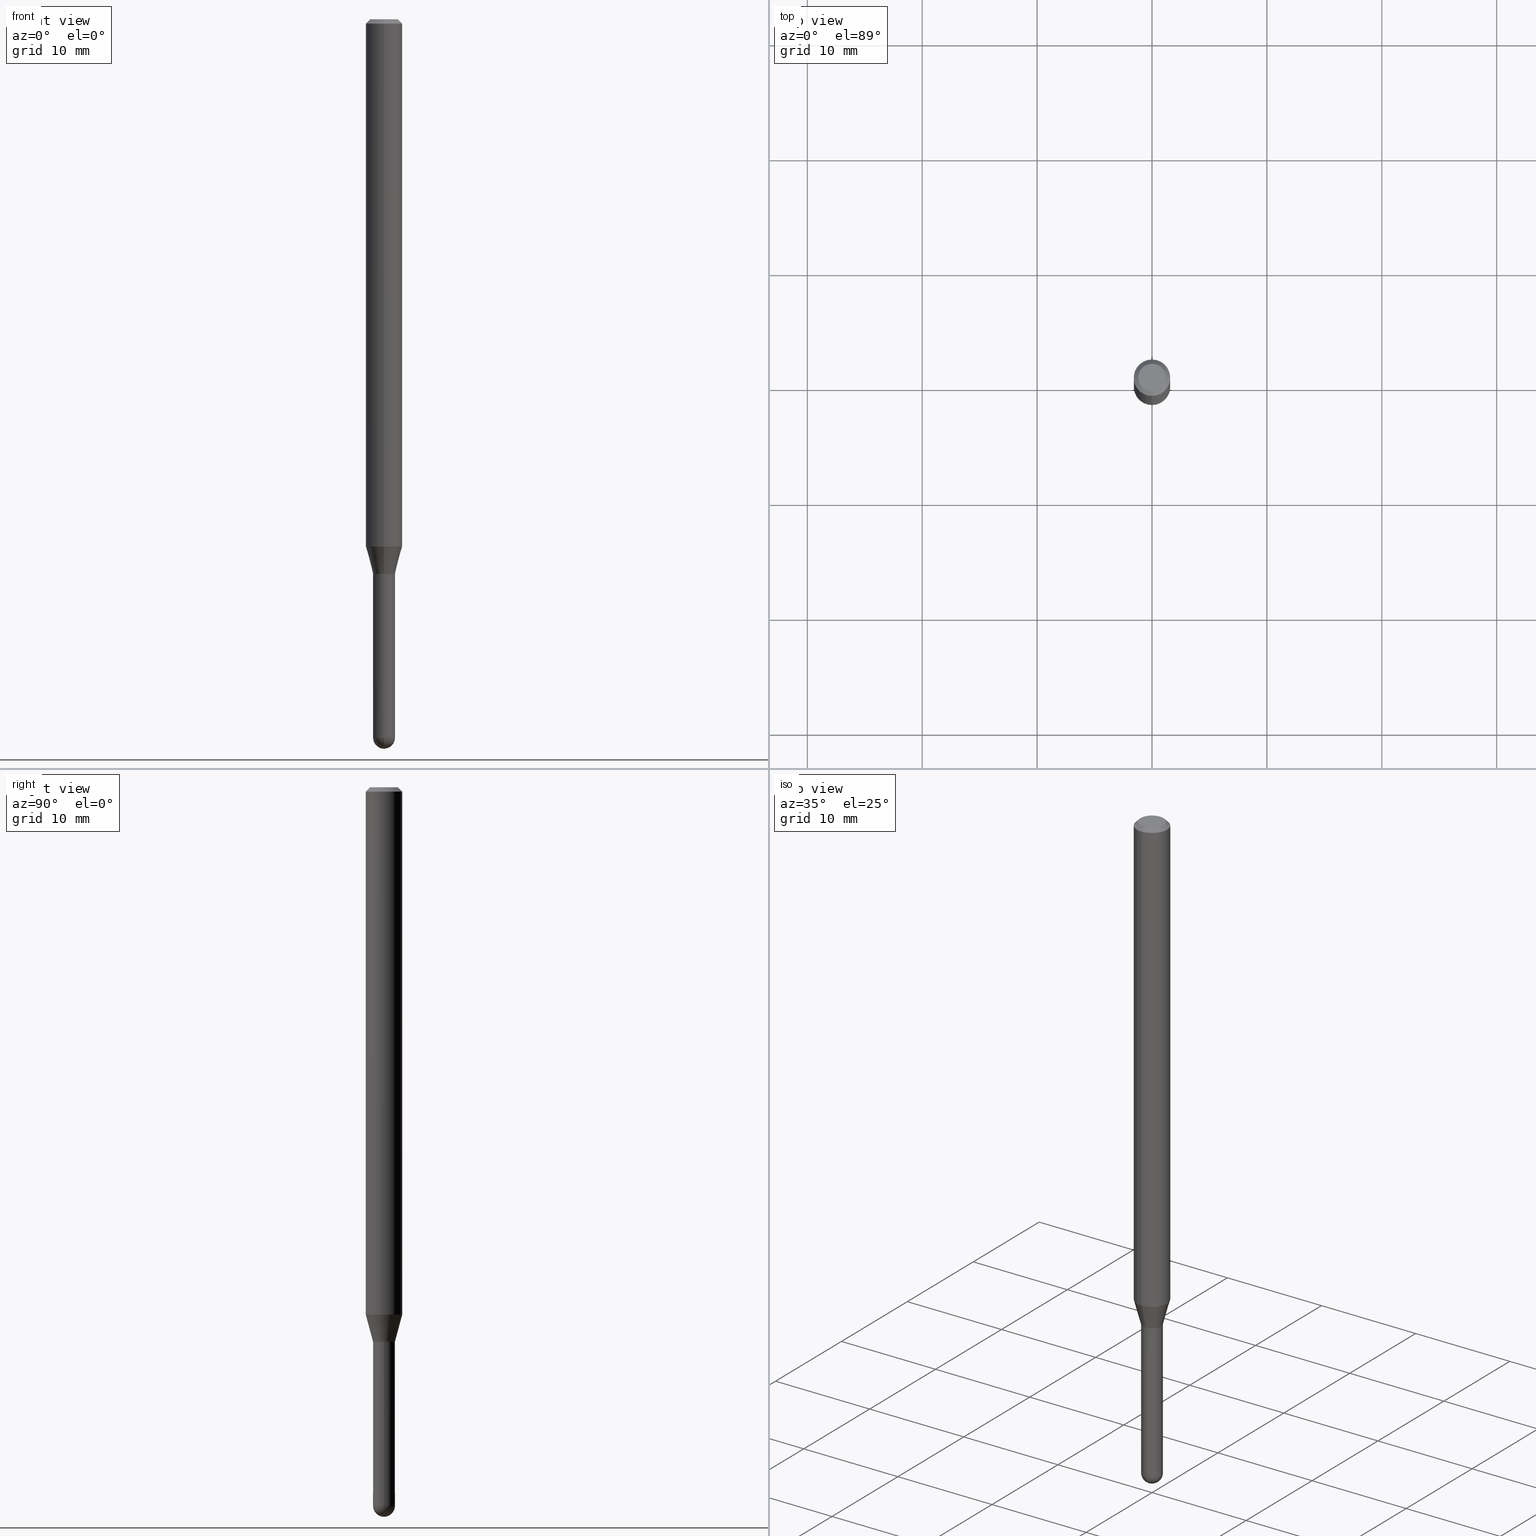
[diagram: canonical four-view strip — front | top / right | iso, engineering-drawing reading convention]
A machine part, canonical four-view strip (front | top / right | iso — engineering-drawing reading convention). The complete STEP part file that produces these views, byte-faithful:
ISO-10303-21;
HEADER;
FILE_DESCRIPTION (( 'STEP AP203' ),
    '1' );
FILE_NAME ('01543.STEP',
    '2024-03-07T19:38:00',
    ( '' ),
    ( '' ),
    'SwSTEP 2.0',
    'SolidWorks 2023',
    '' );
FILE_SCHEMA (( 'CONFIG_CONTROL_DESIGN' ));
ENDSEC;

DATA;
#1 = CYLINDRICAL_SURFACE ( 'NONE', #429, 0.06250000000000000000 ) ;
#2 = VERTEX_POINT ( 'NONE', #396 ) ;
#3 = DIRECTION ( 'NONE',  ( 6.982962677686265922E-15, 1.000000000000000000, 0.000000000000000000 ) ) ;
#4 = CARTESIAN_POINT ( 'NONE',  ( 0.03749999999999999861, -2.618611004132350016E-16, 1.828566290923475922E-30 ) ) ;
#5 = AXIS2_PLACEMENT_3D ( 'NONE', #258, #51, #299 ) ;
#6 = DIRECTION ( 'NONE',  ( 2.445385109273373286E-29, -3.491601197584523250E-15, -1.000000000000000000 ) ) ;
#7 = CIRCLE ( 'NONE', #440, 0.03749999999999999861 ) ;
#8 = ORIENTED_EDGE ( 'NONE', *, *, #446, .F. ) ;
#9 = ADVANCED_FACE ( 'NONE', ( #245 ), #44, .F. ) ;
#10 = CARTESIAN_POINT ( 'NONE',  ( 2.664535259100844478E-16, 0.03749999999999343442, -1.899500000000000410 ) ) ;
#11 = AXIS2_PLACEMENT_3D ( 'NONE', #110, #229, #437 ) ;
#12 = CC_DESIGN_APPROVAL ( #377, ( #312 ) ) ;
#13 = COORDINATED_UNIVERSAL_TIME_OFFSET ( 5, 0, .BEHIND. ) ;
#14 = AXIS2_PLACEMENT_3D ( 'NONE', #33, #318, #356 ) ;
#15 = PRODUCT_DEFINITION_FORMATION_WITH_SPECIFIED_SOURCE ( 'ANY', '', #406, .NOT_KNOWN. ) ;
#16 = EDGE_CURVE ( 'NONE', #404, #69, #508, .T. ) ;
#17 = ORIENTED_EDGE ( 'NONE', *, *, #273, .T. ) ;
#18 = ADVANCED_FACE ( 'NONE', ( #40 ), #360, .F. ) ;
#19 = DATE_AND_TIME ( #221, #387 ) ;
#20 = ORIENTED_EDGE ( 'NONE', *, *, #152, .T. ) ;
#21 = APPROVAL_DATE_TIME ( #179, #456 ) ;
#22 = ORIENTED_EDGE ( 'NONE', *, *, #292, .T. ) ;
#23 = DATE_AND_TIME ( #458, #302 ) ;
#24 = CIRCLE ( 'NONE', #346, 0.03749999999999999861 ) ;
#25 = AXIS2_PLACEMENT_3D ( 'NONE', #439, #80, #448 ) ;
#26 = LOCAL_TIME ( 14, 38, 0.000000000000000000, #63 ) ;
#27 = CC_DESIGN_DATE_AND_TIME_ASSIGNMENT ( #23, #496, ( #312 ) ) ;
#28 = EDGE_LOOP ( 'NONE', ( #8, #30, #100, #111 ) ) ;
#29 = LINE ( 'NONE', #70, #228 ) ;
#30 = ORIENTED_EDGE ( 'NONE', *, *, #340, .T. ) ;
#31 = FACE_OUTER_BOUND ( 'NONE', #203, .T. ) ;
#32 = ORIENTED_EDGE ( 'NONE', *, *, #152, .F. ) ;
#33 = CARTESIAN_POINT ( 'NONE',  ( 0.000000000000000000, 0.000000000000000000, 0.000000000000000000 ) ) ;
#34 =( CONVERSION_BASED_UNIT ( 'INCH', #333 ) LENGTH_UNIT ( ) NAMED_UNIT ( #106 ) );
#36 = CARTESIAN_POINT ( 'NONE',  ( 4.646231707619410756E-29, -6.634042275410595397E-15, -1.900000000000000577 ) ) ;
#35 = AXIS2_PLACEMENT_3D ( 'NONE', #352, #118, #193 ) ;
#37 = ADVANCED_FACE ( 'NONE', ( #197 ), #326, .T. ) ;
#38 = DIRECTION ( 'NONE',  ( -6.982962677686265922E-15, -1.000000000000000000, 3.491601197584523250E-15 ) ) ;
#39 = DIRECTION ( 'NONE',  ( -2.445385109273373286E-29, 3.491601197584523250E-15, 1.000000000000000000 ) ) ;
#40 = FACE_OUTER_BOUND ( 'NONE', #427, .T. ) ;
#41 = DIRECTION ( 'NONE',  ( -1.000000000000000000, 6.982962677686265922E-15, -4.876176775795935793E-29 ) ) ;
#42 = CYLINDRICAL_SURFACE ( 'NONE', #507, 0.06250000000000000000 ) ;
#43 = EDGE_CURVE ( 'NONE', #227, #151, #317, .T. ) ;
#44 = CYLINDRICAL_SURFACE ( 'NONE', #260, 0.03750000000000005412 ) ;
#45 = DIRECTION ( 'NONE',  ( -2.445468806185136597E-29, 3.491481338843145583E-15, 1.000000000000000000 ) ) ;
#46 = ADVANCED_FACE ( 'NONE', ( #242 ), #288, .T. ) ;
#47 = VECTOR ( 'NONE', #399, 39.37007874015748143 ) ;
#48 = CC_DESIGN_APPROVAL ( #456, ( #15 ) ) ;
#49 = DIRECTION ( 'NONE',  ( -2.445385109273373286E-29, 3.491601197584523250E-15, 1.000000000000000000 ) ) ;
#50 = DIRECTION ( 'NONE',  ( -6.982962677686265922E-15, -1.000000000000000000, 3.491601197584523250E-15 ) ) ;
#51 = DIRECTION ( 'NONE',  ( -2.445385109273373286E-29, 3.491601197584523250E-15, 1.000000000000000000 ) ) ;
#52 = CIRCLE ( 'NONE', #461, 0.04749999999999999362 ) ;
#53 = DIRECTION ( 'NONE',  ( -6.982962677686265133E-15, -1.000000000000000000, 0.000000000000000000 ) ) ;
#54 = APPROVAL_ROLE ( '' ) ;
#55 = PERSON ( 'UNSPECIFIED', 'UNSPECIFIED', 'UNSPECIFIED', ('UNSPECIFIED'), ('UNSPECIFIED'), ('UNSPECIFIED') ) ;
#56 = PERSON_AND_ORGANIZATION_ROLE ( 'creator' ) ;
#57 = ORIENTED_EDGE ( 'NONE', *, *, #490, .F. ) ;
#58 = EDGE_CURVE ( 'NONE', #404, #272, #24, .T. ) ;
#59 = AXIS2_PLACEMENT_3D ( 'NONE', #362, #330, #158 ) ;
#60 = PERSON_AND_ORGANIZATION_ROLE ( 'creator' ) ;
#61 = AXIS2_PLACEMENT_3D ( 'NONE', #361, #454, #415 ) ;
#62 = EDGE_LOOP ( 'NONE', ( #66, #342, #270, #452 ) ) ;
#63 = COORDINATED_UNIVERSAL_TIME_OFFSET ( 5, 0, .BEHIND. ) ;
#64 = ORIENTED_EDGE ( 'NONE', *, *, #75, .F. ) ;
#65 = EDGE_CURVE ( 'NONE', #386, #2, #180, .T. ) ;
#66 = ORIENTED_EDGE ( 'NONE', *, *, #65, .T. ) ;
#67 = VECTOR ( 'NONE', #91, 39.37007874015748143 ) ;
#68 = SPHERICAL_SURFACE ( 'NONE', #129, 0.03749999999999990841 ) ;
#69 = VERTEX_POINT ( 'NONE', #321 ) ;
#70 = CARTESIAN_POINT ( 'NONE',  ( 4.364351673553919652E-16, 0.06249999999999995143, -0.01500000000000022669 ) ) ;
#71 = ORIENTED_EDGE ( 'NONE', *, *, #43, .T. ) ;
#72 = DIRECTION ( 'NONE',  ( -2.445385109273373286E-29, 3.491601197584523250E-15, 1.000000000000000000 ) ) ;
#73 =( LENGTH_UNIT ( ) NAMED_UNIT ( * ) SI_UNIT ( $, .METRE. ) );
#74 = EDGE_LOOP ( 'NONE', ( #199, #263 ) ) ;
#75 = EDGE_CURVE ( 'NONE', #282, #421, #417, .T. ) ;
#76 = DIRECTION ( 'NONE',  ( 6.982962677686265133E-15, 1.000000000000000000, 0.000000000000000000 ) ) ;
#77 = CIRCLE ( 'NONE', #354, 0.03749999999999999861 ) ;
#79 = CARTESIAN_POINT ( 'NONE',  ( 3.668077663910062276E-31, -5.237401796376787981E-17, -0.01500000000000000812 ) ) ;
#78 = LOCAL_TIME ( 14, 38, 0.000000000000000000, #499 ) ;
#80 = DIRECTION ( 'NONE',  ( -2.445385109273373286E-29, 3.491601197584523250E-15, 1.000000000000000000 ) ) ;
#81 = LINE ( 'NONE', #398, #423 ) ;
#82 = ORIENTED_EDGE ( 'NONE', *, *, #16, .F. ) ;
#83 = EDGE_CURVE ( 'NONE', #386, #151, #125, .T. ) ;
#84 = EDGE_LOOP ( 'NONE', ( #392, #131, #233, #481, #231 ) ) ;
#85 = LINE ( 'NONE', #88, #478 ) ;
#86 = DIRECTION ( 'NONE',  ( -4.937700262164674260E-15, -0.7071067811865632269, 0.7071067811865319186 ) ) ;
#87 = AXIS2_PLACEMENT_3D ( 'NONE', #36, #436, #434 ) ;
#88 = CARTESIAN_POINT ( 'NONE',  ( 2.664535259100834124E-16, 0.03749999999999328870, -1.900000000000000133 ) ) ;
#89 = CARTESIAN_POINT ( 'NONE',  ( 4.646231707619410756E-29, -6.634042275410595397E-15, -1.900000000000000577 ) ) ;
#90 = ORIENTED_EDGE ( 'NONE', *, *, #43, .F. ) ;
#91 = DIRECTION ( 'NONE',  ( -4.851104656540964275E-15, -0.7071067811865500152, -0.7071067811865450192 ) ) ;
#92 = CARTESIAN_POINT ( 'NONE',  ( -2.583696190743453531E-16, -0.03700000000000663175, -1.900000000000000577 ) ) ;
#93 = MECHANICAL_CONTEXT ( 'NONE', #170, 'mechanical' ) ;
#94 = CIRCLE ( 'NONE', #61, 0.03699999999999999817 ) ;
#95 = PERSON_AND_ORGANIZATION ( #55, #262 ) ;
#96 = ORIENTED_EDGE ( 'NONE', *, *, #173, .T. ) ;
#97 = EDGE_CURVE ( 'NONE', #282, #265, #251, .T. ) ;
#98 = COORDINATED_UNIVERSAL_TIME_OFFSET ( 5, 0, .BEHIND. ) ;
#99 = CC_DESIGN_DATE_AND_TIME_ASSIGNMENT ( #345, #382, ( #374 ) ) ;
#100 = ORIENTED_EDGE ( 'NONE', *, *, #83, .T. ) ;
#101 = CIRCLE ( 'NONE', #35, 0.06250000000000000000 ) ;
#102 = VERTEX_POINT ( 'NONE', #512 ) ;
#103 = APPROVAL_DATE_TIME ( #19, #405 ) ;
#104 = VERTEX_POINT ( 'NONE', #464 ) ;
#105 = DIRECTION ( 'NONE',  ( -2.445468806185136597E-29, 3.491481338843145583E-15, 1.000000000000000000 ) ) ;
#106 = DIMENSIONAL_EXPONENTS ( 1.000000000000000000, 0.000000000000000000, 0.000000000000000000, 0.000000000000000000, 0.000000000000000000, 0.000000000000000000, 0.000000000000000000 ) ;
#107 = DIRECTION ( 'NONE',  ( -6.982962677686265133E-15, -1.000000000000000000, 0.000000000000000000 ) ) ;
#108 = ORIENTED_EDGE ( 'NONE', *, *, #195, .F. ) ;
#109 = CONICAL_SURFACE ( 'NONE', #25, 0.03749999999999992228, 0.2617993877991579010 ) ;
#110 = CARTESIAN_POINT ( 'NONE',  ( 2.165297130615131295E-46, -3.091682379888468423E-32, -8.854626301615667217E-18 ) ) ;
#111 = ORIENTED_EDGE ( 'NONE', *, *, #320, .F. ) ;
#112 = DIRECTION ( 'NONE',  ( 1.000000000000000000, -6.982962677686242256E-15, 0.000000000000000000 ) ) ;
#113 = ADVANCED_FACE ( 'NONE', ( #428 ), #214, .T. ) ;
#114 = DIRECTION ( 'NONE',  ( -2.445385109273373286E-29, 3.491601197584523250E-15, 1.000000000000000000 ) ) ;
#115 = CARTESIAN_POINT ( 'NONE',  ( 4.646231707619410756E-29, -6.634042275410595397E-15, -1.900000000000000577 ) ) ;
#116 = LINE ( 'NONE', #491, #238 ) ;
#117 = CARTESIAN_POINT ( 'NONE',  ( 6.021966935230899318E-29, -8.597772796901246653E-15, -2.462500000000000355 ) ) ;
#118 = DIRECTION ( 'NONE',  ( -2.445385109273373286E-29, 3.491601197584523250E-15, 1.000000000000000000 ) ) ;
#119 = DIRECTION ( 'NONE',  ( -2.445385109273373005E-29, 3.491601197584523250E-15, 1.000000000000000000 ) ) ;
#120 = VERTEX_POINT ( 'NONE', #314 ) ;
#121 = FACE_OUTER_BOUND ( 'NONE', #147, .T. ) ;
#122 = CC_DESIGN_PERSON_AND_ORGANIZATION_ASSIGNMENT ( #376, #60, ( #312 ) ) ;
#123 = CARTESIAN_POINT ( 'NONE',  ( 6.018760061646477031E-29, -8.602365222398048274E-15, -2.462500000000000355 ) ) ;
#124 = DIRECTION ( 'NONE',  ( 2.445385109273372725E-29, -3.491601197584523250E-15, -1.000000000000000000 ) ) ;
#125 = LINE ( 'NONE', #483, #188 ) ;
#126 = PLANE ( 'NONE',  #449 ) ;
#127 = MANIFOLD_SOLID_BREP ( 'Body-Move/Copy2[2]', #187 ) ;
#128 = CARTESIAN_POINT ( 'NONE',  ( 4.646390731751759982E-29, -6.633814543801977041E-15, -1.900000000000000133 ) ) ;
#129 = AXIS2_PLACEMENT_3D ( 'NONE', #350, #470, #3 ) ;
#130 = DIRECTION ( 'NONE',  ( 2.438088387897960049E-29, -3.491481338843145188E-15, -1.000000000000000000 ) ) ;
#131 = ORIENTED_EDGE ( 'NONE', *, *, #75, .T. ) ;
#132 = LINE ( 'NONE', #337, #138 ) ;
#133 = EDGE_CURVE ( 'NONE', #421, #404, #286, .T. ) ;
#134 = FACE_OUTER_BOUND ( 'NONE', #275, .T. ) ;
#135 = APPLICATION_PROTOCOL_DEFINITION ( 'international standard', 'config_control_design', 1994, #170 ) ;
#136 = AXIS2_PLACEMENT_3D ( 'NONE', #123, #247, #407 ) ;
#137 = VECTOR ( 'NONE', #447, 39.37007874015748143 ) ;
#138 = VECTOR ( 'NONE', #202, 39.37007874015748143 ) ;
#139 = ADVANCED_FACE ( 'NONE', ( #280 ), #42, .T. ) ;
#140 = CALENDAR_DATE ( 2024, 7, 3 ) ;
#141 = ORIENTED_EDGE ( 'NONE', *, *, #213, .T. ) ;
#142 = ORIENTED_EDGE ( 'NONE', *, *, #271, .T. ) ;
#143 = ORIENTED_EDGE ( 'NONE', *, *, #503, .T. ) ;
#144 = VECTOR ( 'NONE', #254, 39.37007874015748854 ) ;
#145 = CALENDAR_DATE ( 2024, 7, 3 ) ;
#146 = LOCAL_TIME ( 14, 38, 0.000000000000000000, #226 ) ;
#147 = EDGE_LOOP ( 'NONE', ( #222, #426 ) ) ;
#148 = ORIENTED_EDGE ( 'NONE', *, *, #178, .T. ) ;
#149 = ADVANCED_FACE ( 'NONE', ( #31 ), #68, .T. ) ;
#150 = DIRECTION ( 'NONE',  ( -2.445385109273373286E-29, 3.491601197584523250E-15, 1.000000000000000000 ) ) ;
#151 = VERTEX_POINT ( 'NONE', #156 ) ;
#152 = EDGE_CURVE ( 'NONE', #161, #120, #339, .T. ) ;
#153 = DIRECTION ( 'NONE',  ( -6.982962677686265922E-15, -1.000000000000000000, 3.483106191921935554E-15 ) ) ;
#154 = CC_DESIGN_SECURITY_CLASSIFICATION ( #374, ( #15 ) ) ;
#155 = DIRECTION ( 'NONE',  ( 6.982962677686265922E-15, 1.000000000000000000, -3.483106191921935554E-15 ) ) ;
#156 = CARTESIAN_POINT ( 'NONE',  ( -2.618611004131907761E-16, -0.03750000000000695138, -1.899500000000000410 ) ) ;
#157 = CARTESIAN_POINT ( 'NONE',  ( 0.000000000000000000, 0.000000000000000000, 0.000000000000000000 ) ) ;
#158 = DIRECTION ( 'NONE',  ( -6.982962677686265922E-15, -1.000000000000000000, 3.491601197584523644E-15 ) ) ;
#159 = FACE_OUTER_BOUND ( 'NONE', #498, .T. ) ;
#160 = CARTESIAN_POINT ( 'NONE',  ( 6.018760061646477031E-29, -8.602365222398048274E-15, -2.462500000000000355 ) ) ;
#161 = VERTEX_POINT ( 'NONE', #164 ) ;
#162 = DESIGN_CONTEXT ( 'detailed design', #212, 'design' ) ;
#163 = VECTOR ( 'NONE', #205, 39.37007874015748143 ) ;
#164 = CARTESIAN_POINT ( 'NONE',  ( 3.840629472727447874E-16, 0.04749999999999999362, -1.747056831868805136E-16 ) ) ;
#165 = AXIS2_PLACEMENT_3D ( 'NONE', #196, #509, #473 ) ;
#166 = DIRECTION ( 'NONE',  ( -2.445385109273373005E-29, 3.491601197584523250E-15, 1.000000000000000000 ) ) ;
#167 = DIRECTION ( 'NONE',  ( 6.982962677686265922E-15, 1.000000000000000000, -3.483106191921935554E-15 ) ) ;
#168 = ORIENTED_EDGE ( 'NONE', *, *, #178, .F. ) ;
#169 = LINE ( 'NONE', #488, #144 ) ;
#170 = APPLICATION_CONTEXT ( 'configuration controlled 3d designs of mechanical parts and assemblies' ) ;
#171 = FACE_OUTER_BOUND ( 'NONE', #74, .T. ) ;
#172 = DIRECTION ( 'NONE',  ( -2.445385109273373286E-29, 3.491601197584523250E-15, 1.000000000000000000 ) ) ;
#173 = EDGE_CURVE ( 'NONE', #236, #272, #295, .T. ) ;
#174 = AXIS2_PLACEMENT_3D ( 'NONE', #435, #72, #198 ) ;
#175 = AXIS2_PLACEMENT_3D ( 'NONE', #412, #246, #479 ) ;
#176 = FACE_OUTER_BOUND ( 'NONE', #315, .T. ) ;
#177 = AXIS2_PLACEMENT_3D ( 'NONE', #216, #39, #255 ) ;
#178 = EDGE_CURVE ( 'NONE', #102, #218, #385, .T. ) ;
#179 = DATE_AND_TIME ( #181, #146 ) ;
#180 = CIRCLE ( 'NONE', #87, 0.03699999999999999817 ) ;
#181 = CALENDAR_DATE ( 2024, 7, 3 ) ;
#182 = ORIENTED_EDGE ( 'NONE', *, *, #97, .T. ) ;
#183 = SHAPE_DEFINITION_REPRESENTATION ( #484, #252 ) ;
#184 = ORIENTED_EDGE ( 'NONE', *, *, #292, .F. ) ;
#185 = APPROVAL_ROLE ( '' ) ;
#186 = EDGE_LOOP ( 'NONE', ( #225, #459, #64, #444 ) ) ;
#187 = CLOSED_SHELL ( 'NONE', ( #18, #113, #37, #413, #306, #230, #139, #253, #268, #298, #497, #9 ) ) ;
#188 = VECTOR ( 'NONE', #86, 39.37007874015748143 ) ;
#189 = PERSON_AND_ORGANIZATION ( #55, #262 ) ;
#190 = AXIS2_PLACEMENT_3D ( 'NONE', #89, #172, #53 ) ;
#191 = EDGE_CURVE ( 'NONE', #120, #161, #52, .T. ) ;
#192 = ORIENTED_EDGE ( 'NONE', *, *, #191, .F. ) ;
#193 = DIRECTION ( 'NONE',  ( -6.982962677686265922E-15, -1.000000000000000000, 4.370956789862821150E-15 ) ) ;
#194 = ORIENTED_EDGE ( 'NONE', *, *, #271, .F. ) ;
#195 = EDGE_CURVE ( 'NONE', #267, #462, #81, .T. ) ;
#196 = CARTESIAN_POINT ( 'NONE',  ( 0.000000000000000000, 0.000000000000000000, 0.000000000000000000 ) ) ;
#197 = FACE_OUTER_BOUND ( 'NONE', #311, .T. ) ;
#198 = DIRECTION ( 'NONE',  ( -6.982962677686265922E-15, -1.000000000000000000, 4.370956789862821150E-15 ) ) ;
#199 = ORIENTED_EDGE ( 'NONE', *, *, #490, .T. ) ;
#200 = EDGE_CURVE ( 'NONE', #161, #104, #29, .T. ) ;
#201 = CYLINDRICAL_SURFACE ( 'NONE', #14, 0.03749999999999999861 ) ;
#202 = DIRECTION ( 'NONE',  ( 5.024295867788190974E-15, 0.7071067811865681119, 0.7071067811865270336 ) ) ;
#203 = EDGE_LOOP ( 'NONE', ( #424, #96, #495, #220 ) ) ;
#204 = CARTESIAN_POINT ( 'NONE',  ( 6.021966935230899318E-29, -8.597772796901246653E-15, -2.462500000000000355 ) ) ;
#205 = DIRECTION ( 'NONE',  ( -2.445468806185136877E-29, 3.491481338843145188E-15, 1.000000000000000000 ) ) ;
#206 = AXIS2_PLACEMENT_3D ( 'NONE', #117, #285, #477 ) ;
#208 = DIRECTION ( 'NONE',  ( 1.000000000000000000, -6.982962677686242256E-15, 0.000000000000000000 ) ) ;
#207 = AXIS2_PLACEMENT_3D ( 'NONE', #157, #489, #319 ) ;
#209 = DIRECTION ( 'NONE',  ( -6.982962677686265922E-15, -1.000000000000000000, 0.000000000000000000 ) ) ;
#210 = ADVANCED_FACE ( 'NONE', ( #239 ), #201, .T. ) ;
#211 = CARTESIAN_POINT ( 'NONE',  ( 4.440892098500625669E-16, 0.06250000000000000000, -2.182250748490327031E-16 ) ) ;
#212 = APPLICATION_CONTEXT ( 'configuration controlled 3d designs of mechanical parts and assemblies' ) ;
#213 = EDGE_CURVE ( 'NONE', #218, #102, #101, .T. ) ;
#214 = CONICAL_SURFACE ( 'NONE', #301, 0.03699999999999999817, 0.7853981633974739252 ) ;
#215 = APPROVAL_PERSON_ORGANIZATION ( #378, #405, #305 ) ;
#216 = CARTESIAN_POINT ( 'NONE',  ( 3.668077663910062276E-31, -5.237401796376787981E-17, -0.01500000000000000812 ) ) ;
#217 = ADVANCED_FACE ( 'NONE', ( #232 ), #391, .T. ) ;
#218 = VERTEX_POINT ( 'NONE', #441 ) ;
#219 = PERSON_AND_ORGANIZATION ( #55, #262 ) ;
#220 = ORIENTED_EDGE ( 'NONE', *, *, #133, .F. ) ;
#221 = CALENDAR_DATE ( 2024, 7, 3 ) ;
#222 = ORIENTED_EDGE ( 'NONE', *, *, #65, .F. ) ;
#223 = EDGE_CURVE ( 'NONE', #307, #104, #492, .T. ) ;
#224 = SECURITY_CLASSIFICATION_LEVEL ( 'unclassified' ) ;
#225 = ORIENTED_EDGE ( 'NONE', *, *, #173, .F. ) ;
#226 = COORDINATED_UNIVERSAL_TIME_OFFSET ( 5, 0, .BEHIND. ) ;
#227 = VERTEX_POINT ( 'NONE', #283 ) ;
#228 = VECTOR ( 'NONE', #394, 39.37007874015748143 ) ;
#229 = DIRECTION ( 'NONE',  ( -2.445385109273373286E-29, 3.491601197584523250E-15, 1.000000000000000000 ) ) ;
#230 = ADVANCED_FACE ( 'NONE', ( #159 ), #250, .T. ) ;
#231 = ORIENTED_EDGE ( 'NONE', *, *, #237, .F. ) ;
#232 = FACE_OUTER_BOUND ( 'NONE', #357, .T. ) ;
#233 = ORIENTED_EDGE ( 'NONE', *, *, #133, .T. ) ;
#234 = DIRECTION ( 'NONE',  ( -6.982962677686266711E-15, -1.000000000000000000, 3.491601197584523250E-15 ) ) ;
#235 =( NAMED_UNIT ( * ) SI_UNIT ( $, .STERADIAN. ) SOLID_ANGLE_UNIT ( ) );
#236 = VERTEX_POINT ( 'NONE', #244 ) ;
#237 = EDGE_CURVE ( 'NONE', #265, #69, #460, .T. ) ;
#238 = VECTOR ( 'NONE', #119, 39.37007874015748143 ) ;
#239 = FACE_OUTER_BOUND ( 'NONE', #84, .T. ) ;
#240 = EDGE_CURVE ( 'NONE', #272, #282, #77, .T. ) ;
#241 = DIRECTION ( 'NONE',  ( -2.445385109273373286E-29, 3.491601197584523250E-15, 1.000000000000000000 ) ) ;
#242 = FACE_OUTER_BOUND ( 'NONE', #186, .T. ) ;
#243 = CARTESIAN_POINT ( 'NONE',  ( -4.364351673553912750E-16, -0.06250000000000005551, -0.01499999999999979128 ) ) ;
#244 = CARTESIAN_POINT ( 'NONE',  ( 6.112068578670630349E-29, -8.730999559856264176E-15, -2.500000000000000000 ) ) ;
#245 = FACE_OUTER_BOUND ( 'NONE', #344, .T. ) ;
#246 = DIRECTION ( 'NONE',  ( -2.445385109273373286E-29, 3.491601197584523250E-15, 1.000000000000000000 ) ) ;
#247 = DIRECTION ( 'NONE',  ( -1.000000000000000000, 6.982962677686265922E-15, -4.883557194083112901E-29 ) ) ;
#248 = DIRECTION ( 'NONE',  ( 1.000000000000000000, -6.982962677686268288E-15, 0.000000000000000000 ) ) ;
#249 = CLOSED_SHELL ( 'NONE', ( #217, #46, #329, #149, #210 ) ) ;
#250 = CONICAL_SURFACE ( 'NONE', #334, 0.03749999999999992228, 0.2617993877991579010 ) ;
#251 = LINE ( 'NONE', #293, #137 ) ;
#252 = ADVANCED_BREP_SHAPE_REPRESENTATION ( '01543', ( #420, #127, #207 ), #277 ) ;
#253 = ADVANCED_FACE ( 'NONE', ( #336 ), #261, .T. ) ;
#254 = DIRECTION ( 'NONE',  ( -1.807323732225381810E-15, -0.2588190451025255689, 0.9659258262890669799 ) ) ;
#255 = DIRECTION ( 'NONE',  ( -6.982962677686265922E-15, -1.000000000000000000, 3.483106191921935554E-15 ) ) ;
#256 = PLANE ( 'NONE',  #379 ) ;
#257 = CARTESIAN_POINT ( 'NONE',  ( -2.664535259099770148E-16, -0.03750000000000855427, -2.462500000000000355 ) ) ;
#258 = CARTESIAN_POINT ( 'NONE',  ( 4.646231707619410196E-29, -6.634042275410594609E-15, -1.900000000000000133 ) ) ;
#259 = PERSON_AND_ORGANIZATION ( #55, #262 ) ;
#260 = AXIS2_PLACEMENT_3D ( 'NONE', #471, #114, #474 ) ;
#261 = CONICAL_SURFACE ( 'NONE', #373, 0.06250000000000000000, 0.7853981633974483900 ) ;
#262 = ORGANIZATION ( 'UNSPECIFIED', 'UNSPECIFIED', '' ) ;
#263 = ORIENTED_EDGE ( 'NONE', *, *, #237, .T. ) ;
#264 = PERSON_AND_ORGANIZATION ( #55, #262 ) ;
#265 = VERTEX_POINT ( 'NONE', #325 ) ;
#266 = APPROVAL_STATUS ( 'not_yet_approved' ) ;
#267 = VERTEX_POINT ( 'NONE', #482 ) ;
#268 = ADVANCED_FACE ( 'NONE', ( #176 ), #256, .F. ) ;
#269 = AXIS2_PLACEMENT_3D ( 'NONE', #358, #506, #153 ) ;
#270 = ORIENTED_EDGE ( 'NONE', *, *, #503, .F. ) ;
#271 = EDGE_CURVE ( 'NONE', #227, #267, #397, .T. ) ;
#272 = VERTEX_POINT ( 'NONE', #371 ) ;
#273 = EDGE_CURVE ( 'NONE', #267, #102, #85, .T. ) ;
#274 = CARTESIAN_POINT ( 'NONE',  ( 0.000000000000000000, 0.000000000000000000, 0.000000000000000000 ) ) ;
#275 = EDGE_LOOP ( 'NONE', ( #142, #17, #465, #184 ) ) ;
#276 = CIRCLE ( 'NONE', #5, 0.03749999999999992228 ) ;
#277 =( GEOMETRIC_REPRESENTATION_CONTEXT ( 3 ) GLOBAL_UNCERTAINTY_ASSIGNED_CONTEXT ( ( #472 ) ) GLOBAL_UNIT_ASSIGNED_CONTEXT ( ( #34, #453, #235 ) ) REPRESENTATION_CONTEXT ( 'NONE', 'WORKASPACE' ) );
#278 = CARTESIAN_POINT ( 'NONE',  ( 6.018760061646477031E-29, -8.602365222398048274E-15, -2.462500000000000355 ) ) ;
#279 = CARTESIAN_POINT ( 'NONE',  ( 6.021966935230899318E-29, -8.597772796901246653E-15, -2.462500000000000355 ) ) ;
#280 = FACE_OUTER_BOUND ( 'NONE', #381, .T. ) ;
#281 = LINE ( 'NONE', #442, #67 ) ;
#282 = VERTEX_POINT ( 'NONE', #408 ) ;
#283 = CARTESIAN_POINT ( 'NONE',  ( -2.618611004131879658E-16, -0.03750000000000655587, -1.900000000000000133 ) ) ;
#284 = CARTESIAN_POINT ( 'NONE',  ( 4.645009015064772645E-29, -6.632296474811802988E-15, -1.899500000000000410 ) ) ;
#285 = DIRECTION ( 'NONE',  ( -2.445468806185136597E-29, 3.491481338843145583E-15, 1.000000000000000000 ) ) ;
#286 = CIRCLE ( 'NONE', #468, 0.03749999999999999861 ) ;
#287 = DIRECTION ( 'NONE',  ( -2.445468806185136597E-29, 3.491481338843145583E-15, 1.000000000000000000 ) ) ;
#288 = SPHERICAL_SURFACE ( 'NONE', #136, 0.03749999999999990841 ) ;
#289 = CARTESIAN_POINT ( 'NONE',  ( 4.646231707619410756E-29, -6.634042275410595397E-15, -1.900000000000000577 ) ) ;
#290 = EDGE_LOOP ( 'NONE', ( #309, #32, #349, #443 ) ) ;
#291 = DIRECTION ( 'NONE',  ( 6.982962677686265922E-15, 1.000000000000000000, -3.491601197584523250E-15 ) ) ;
#292 = EDGE_CURVE ( 'NONE', #227, #218, #169, .T. ) ;
#293 = CARTESIAN_POINT ( 'NONE',  ( -0.03749999999999999861, 2.664535259100375598E-16, -1.844600658845589808E-30 ) ) ;
#294 = DIRECTION ( 'NONE',  ( -6.982962677686265922E-15, -1.000000000000000000, 3.491601197584523250E-15 ) ) ;
#295 = CIRCLE ( 'NONE', #308, 0.03749999999999990841 ) ;
#296 = CIRCLE ( 'NONE', #431, 0.03749999999999990841 ) ;
#297 = CARTESIAN_POINT ( 'NONE',  ( 3.316907271900976096E-16, 0.04749999999999999362, -1.702783700360726623E-16 ) ) ;
#298 = ADVANCED_FACE ( 'NONE', ( #121 ), #126, .F. ) ;
#299 = DIRECTION ( 'NONE',  ( -6.982962677686265133E-15, -1.000000000000000000, 0.000000000000000000 ) ) ;
#300 = LINE ( 'NONE', #211, #47 ) ;
#301 = AXIS2_PLACEMENT_3D ( 'NONE', #115, #150, #107 ) ;
#302 = LOCAL_TIME ( 14, 38, 0.000000000000000000, #13 ) ;
#303 = APPROVAL_DATE_TIME ( #348, #377 ) ;
#304 = ORIENTED_EDGE ( 'NONE', *, *, #223, .T. ) ;
#305 = APPROVAL_ROLE ( '' ) ;
#306 = ADVANCED_FACE ( 'NONE', ( #134 ), #109, .T. ) ;
#307 = VERTEX_POINT ( 'NONE', #243 ) ;
#309 = ORIENTED_EDGE ( 'NONE', *, *, #389, .F. ) ;
#308 = AXIS2_PLACEMENT_3D ( 'NONE', #278, #388, #76 ) ;
#310 = CIRCLE ( 'NONE', #480, 0.03750000000000019290 ) ;
#311 = EDGE_LOOP ( 'NONE', ( #192, #463, #304, #380 ) ) ;
#312 = PRODUCT_DEFINITION ( 'UNKNOWN', '', #15, #162 ) ;
#313 = ORIENTED_EDGE ( 'NONE', *, *, #223, .F. ) ;
#314 = CARTESIAN_POINT ( 'NONE',  ( -3.773273898774340269E-16, -0.04749999999999999362, 1.569964305836491576E-16 ) ) ;
#315 = EDGE_LOOP ( 'NONE', ( #20, #502 ) ) ;
#316 = DIRECTION ( 'NONE',  ( -2.445385109273373286E-29, 3.491601197584523250E-15, 1.000000000000000000 ) ) ;
#317 = LINE ( 'NONE', #324, #365 ) ;
#318 = DIRECTION ( 'NONE',  ( -2.445468806185136597E-29, 3.491481338843145583E-15, 1.000000000000000000 ) ) ;
#319 = DIRECTION ( 'NONE',  ( 1.000000000000000000, 0.000000000000000000, 0.000000000000000000 ) ) ;
#320 = EDGE_CURVE ( 'NONE', #462, #151, #409, .T. ) ;
#321 = CARTESIAN_POINT ( 'NONE',  ( 0.03749999999999999861, -6.895675644215212043E-15, -1.900000000000000133 ) ) ;
#322 = DIRECTION ( 'NONE',  ( -2.445385109273373286E-29, 3.491601197584523250E-15, 1.000000000000000000 ) ) ;
#323 = DIRECTION ( 'NONE',  ( -7.105427357601000281E-15, -1.000000000000000000, 0.000000000000000000 ) ) ;
#324 = CARTESIAN_POINT ( 'NONE',  ( -2.618611004132353468E-16, -0.03750000000000005412, 1.309350449094198289E-16 ) ) ;
#325 = CARTESIAN_POINT ( 'NONE',  ( -0.03749999999999999861, -7.349340144441574435E-15, -1.900000000000000133 ) ) ;
#326 = CONICAL_SURFACE ( 'NONE', #455, 0.06250000000000000000, 0.7853981633974483900 ) ;
#327 = AXIS2_PLACEMENT_3D ( 'NONE', #486, #130, #41 ) ;
#328 = CC_DESIGN_APPROVAL ( #405, ( #374 ) ) ;
#329 = ADVANCED_FACE ( 'NONE', ( #171 ), #401, .F. ) ;
#330 = DIRECTION ( 'NONE',  ( -2.445385109273373286E-29, 3.491601197584523250E-15, 1.000000000000000000 ) ) ;
#331 = DIRECTION ( 'NONE',  ( -2.445468806185136597E-29, 3.491481338843145583E-15, 1.000000000000000000 ) ) ;
#332 = DIRECTION ( 'NONE',  ( -2.445385109273372725E-29, 3.491601197584523250E-15, 1.000000000000000000 ) ) ;
#333 = LENGTH_MEASURE_WITH_UNIT ( LENGTH_MEASURE( 0.02539999999999999897 ), #73 );
#334 = AXIS2_PLACEMENT_3D ( 'NONE', #402, #322, #475 ) ;
#335 = APPROVAL_PERSON_ORGANIZATION ( #95, #377, #54 ) ;
#336 = FACE_OUTER_BOUND ( 'NONE', #290, .T. ) ;
#337 = CARTESIAN_POINT ( 'NONE',  ( 2.629008122312834506E-16, 0.03699999999999336459, -1.900000000000000577 ) ) ;
#338 = APPROVAL_STATUS ( 'not_yet_approved' ) ;
#339 = CIRCLE ( 'NONE', #11, 0.04749999999999999362 ) ;
#340 = EDGE_CURVE ( 'NONE', #2, #386, #94, .T. ) ;
#341 = PERSON_AND_ORGANIZATION_ROLE ( 'design_supplier' ) ;
#342 = ORIENTED_EDGE ( 'NONE', *, *, #446, .T. ) ;
#343 = PRODUCT_RELATED_PRODUCT_CATEGORY ( 'detail', '', ( #406 ) ) ;
#344 = EDGE_LOOP ( 'NONE', ( #108, #194, #71, #143 ) ) ;
#345 = DATE_AND_TIME ( #145, #78 ) ;
#347 = ORIENTED_EDGE ( 'NONE', *, *, #273, .F. ) ;
#346 = AXIS2_PLACEMENT_3D ( 'NONE', #279, #45, #208 ) ;
#348 = DATE_AND_TIME ( #140, #26 ) ;
#349 = ORIENTED_EDGE ( 'NONE', *, *, #200, .T. ) ;
#350 = CARTESIAN_POINT ( 'NONE',  ( 6.018760061646477031E-29, -8.602365222398048274E-15, -2.462500000000000355 ) ) ;
#351 = ORIENTED_EDGE ( 'NONE', *, *, #320, .T. ) ;
#352 = CARTESIAN_POINT ( 'NONE',  ( 4.418074170822402201E-29, -6.308271448681760560E-15, -1.806698729810781057 ) ) ;
#353 = ORIENTED_EDGE ( 'NONE', *, *, #195, .T. ) ;
#354 = AXIS2_PLACEMENT_3D ( 'NONE', #369, #331, #364 ) ;
#355 = EDGE_CURVE ( 'NONE', #267, #227, #276, .T. ) ;
#356 = DIRECTION ( 'NONE',  ( 1.000000000000000000, -6.982962677686266711E-15, 4.876176775795935793E-29 ) ) ;
#357 = EDGE_LOOP ( 'NONE', ( #469, #182, #57, #82, #390 ) ) ;
#358 = CARTESIAN_POINT ( 'NONE',  ( 3.668077663910062276E-31, -5.237401796376787981E-17, -0.01500000000000000812 ) ) ;
#359 = CARTESIAN_POINT ( 'NONE',  ( 0.03749999999999999861, -7.877654770764846060E-15, -2.462500000000000355 ) ) ;
#360 = CYLINDRICAL_SURFACE ( 'NONE', #59, 0.03750000000000005412 ) ;
#361 = CARTESIAN_POINT ( 'NONE',  ( 4.646231707619410756E-29, -6.634042275410595397E-15, -1.900000000000000577 ) ) ;
#362 = CARTESIAN_POINT ( 'NONE',  ( 0.000000000000000000, 0.000000000000000000, 0.000000000000000000 ) ) ;
#363 = CC_DESIGN_PERSON_AND_ORGANIZATION_ASSIGNMENT ( #264, #56, ( #15 ) ) ;
#364 = DIRECTION ( 'NONE',  ( 1.000000000000000000, -6.982962677686242256E-15, 0.000000000000000000 ) ) ;
#365 = VECTOR ( 'NONE', #166, 39.37007874015748143 ) ;
#366 = CIRCLE ( 'NONE', #177, 0.06250000000000000000 ) ;
#367 = CONICAL_SURFACE ( 'NONE', #190, 0.03699999999999999817, 0.7853981633974739252 ) ;
#368 = ORIENTED_EDGE ( 'NONE', *, *, #433, .F. ) ;
#369 = CARTESIAN_POINT ( 'NONE',  ( 6.021966935230899318E-29, -8.597772796901246653E-15, -2.462500000000000355 ) ) ;
#370 = CARTESIAN_POINT ( 'NONE',  ( 0.000000000000000000, 0.000000000000000000, 0.000000000000000000 ) ) ;
#371 = CARTESIAN_POINT ( 'NONE',  ( 2.618611004132948565E-16, 0.03749999999999135275, -2.462500000000000355 ) ) ;
#372 = DIRECTION ( 'NONE',  ( -2.445385109273373286E-29, 3.491601197584523250E-15, 1.000000000000000000 ) ) ;
#373 = AXIS2_PLACEMENT_3D ( 'NONE', #451, #6, #167 ) ;
#374 = SECURITY_CLASSIFICATION ( '', '', #224 ) ;
#375 = FACE_OUTER_BOUND ( 'NONE', #505, .T. ) ;
#376 = PERSON_AND_ORGANIZATION ( #55, #262 ) ;
#377 = APPROVAL ( #338, 'UNSPECIFIED' ) ;
#378 = PERSON_AND_ORGANIZATION ( #55, #262 ) ;
#379 = AXIS2_PLACEMENT_3D ( 'NONE', #297, #124, #291 ) ;
#380 = ORIENTED_EDGE ( 'NONE', *, *, #200, .F. ) ;
#381 = EDGE_LOOP ( 'NONE', ( #487, #148, #511, #368 ) ) ;
#382 = DATE_TIME_ROLE ( 'classification_date' ) ;
#383 = ORIENTED_EDGE ( 'NONE', *, *, #355, .F. ) ;
#384 = PERSON_AND_ORGANIZATION ( #55, #262 ) ;
#386 = VERTEX_POINT ( 'NONE', #92 ) ;
#385 = CIRCLE ( 'NONE', #174, 0.06250000000000000000 ) ;
#387 = LOCAL_TIME ( 14, 38, 0.000000000000000000, #98 ) ;
#388 = DIRECTION ( 'NONE',  ( 1.000000000000000000, -6.982962677686265922E-15, 4.883557194083112340E-29 ) ) ;
#389 = EDGE_CURVE ( 'NONE', #120, #307, #281, .T. ) ;
#390 = ORIENTED_EDGE ( 'NONE', *, *, #58, .T. ) ;
#391 = CYLINDRICAL_SURFACE ( 'NONE', #165, 0.03749999999999999861 ) ;
#392 = ORIENTED_EDGE ( 'NONE', *, *, #97, .F. ) ;
#393 = EDGE_CURVE ( 'NONE', #102, #104, #300, .T. ) ;
#394 = DIRECTION ( 'NONE',  ( 4.937700262164548042E-15, 0.7071067811865451302, -0.7071067811865499042 ) ) ;
#395 = DIRECTION ( 'NONE',  ( 1.000000000000000000, -6.982962677686268288E-15, 0.000000000000000000 ) ) ;
#396 = CARTESIAN_POINT ( 'NONE',  ( 2.646771690706844422E-16, 0.03699999999999336459, -1.900000000000000577 ) ) ;
#397 = CIRCLE ( 'NONE', #175, 0.03749999999999992228 ) ;
#398 = CARTESIAN_POINT ( 'NONE',  ( 2.664535259100379543E-16, 0.03750000000000005412, -1.309350449094198289E-16 ) ) ;
#399 = DIRECTION ( 'NONE',  ( -2.445385109273373005E-29, 3.491601197584523250E-15, 1.000000000000000000 ) ) ;
#400 = DIRECTION ( 'NONE',  ( 2.445385109273373286E-29, -3.491601197584523250E-15, -1.000000000000000000 ) ) ;
#401 = PLANE ( 'NONE',  #327 ) ;
#402 = CARTESIAN_POINT ( 'NONE',  ( 4.646231707619410196E-29, -6.634042275410594609E-15, -1.900000000000000133 ) ) ;
#403 = CC_DESIGN_PERSON_AND_ORGANIZATION_ASSIGNMENT ( #259, #419, ( #406 ) ) ;
#404 = VERTEX_POINT ( 'NONE', #359 ) ;
#405 = APPROVAL ( #494, 'UNSPECIFIED' ) ;
#406 = PRODUCT ( '01543', '01543', '', ( #93 ) ) ;
#407 = DIRECTION ( 'NONE',  ( 6.982962677686265922E-15, 1.000000000000000000, 0.000000000000000000 ) ) ;
#408 = CARTESIAN_POINT ( 'NONE',  ( -0.03749999999999999861, -7.349340144441574435E-15, -2.462500000000000355 ) ) ;
#409 = CIRCLE ( 'NONE', #500, 0.03750000000000019290 ) ;
#410 = CARTESIAN_POINT ( 'NONE',  ( 4.645009015064772645E-29, -6.632296474811802988E-15, -1.899500000000000410 ) ) ;
#411 = DIRECTION ( 'NONE',  ( -6.982962677686265922E-15, -1.000000000000000000, 0.000000000000000000 ) ) ;
#412 = CARTESIAN_POINT ( 'NONE',  ( 4.646231707619410196E-29, -6.634042275410594609E-15, -1.900000000000000133 ) ) ;
#413 = ADVANCED_FACE ( 'NONE', ( #375 ), #1, .T. ) ;
#414 = FACE_OUTER_BOUND ( 'NONE', #28, .T. ) ;
#415 = DIRECTION ( 'NONE',  ( -6.982962677686265133E-15, -1.000000000000000000, 0.000000000000000000 ) ) ;
#416 = DIRECTION ( 'NONE',  ( -1.000000000000000000, 7.105427357601001070E-15, -4.926315508542082329E-29 ) ) ;
#417 = CIRCLE ( 'NONE', #206, 0.03749999999999999861 ) ;
#418 = CC_DESIGN_PERSON_AND_ORGANIZATION_ASSIGNMENT ( #219, #341, ( #15 ) ) ;
#419 = PERSON_AND_ORGANIZATION_ROLE ( 'design_owner' ) ;
#420 = MANIFOLD_SOLID_BREP ( 'Body-Move/Copy2[1]', #249 ) ;
#421 = VERTEX_POINT ( 'NONE', #257 ) ;
#422 = PERSON_AND_ORGANIZATION_ROLE ( 'classification_officer' ) ;
#423 = VECTOR ( 'NONE', #504, 39.37007874015748143 ) ;
#424 = ORIENTED_EDGE ( 'NONE', *, *, #450, .F. ) ;
#425 = APPLICATION_PROTOCOL_DEFINITION ( 'international standard', 'config_control_design', 1994, #212 ) ;
#426 = ORIENTED_EDGE ( 'NONE', *, *, #340, .F. ) ;
#427 = EDGE_LOOP ( 'NONE', ( #383, #353, #351, #90 ) ) ;
#428 = FACE_OUTER_BOUND ( 'NONE', #62, .T. ) ;
#430 = ORIENTED_EDGE ( 'NONE', *, *, #485, .F. ) ;
#429 = AXIS2_PLACEMENT_3D ( 'NONE', #370, #241, #50 ) ;
#431 = AXIS2_PLACEMENT_3D ( 'NONE', #160, #416, #323 ) ;
#432 = CARTESIAN_POINT ( 'NONE',  ( 2.165297130615131295E-46, -3.091682379888468423E-32, -8.854626301615667217E-18 ) ) ;
#433 = EDGE_CURVE ( 'NONE', #104, #307, #366, .T. ) ;
#434 = DIRECTION ( 'NONE',  ( -6.982962677686265133E-15, -1.000000000000000000, 0.000000000000000000 ) ) ;
#435 = CARTESIAN_POINT ( 'NONE',  ( 4.418074170822402201E-29, -6.308271448681760560E-15, -1.806698729810781057 ) ) ;
#436 = DIRECTION ( 'NONE',  ( -2.445385109273373286E-29, 3.491601197584523250E-15, 1.000000000000000000 ) ) ;
#437 = DIRECTION ( 'NONE',  ( -6.982962677686266711E-15, -1.000000000000000000, 3.491601197584523250E-15 ) ) ;
#438 = ORIENTED_EDGE ( 'NONE', *, *, #355, .T. ) ;
#439 = CARTESIAN_POINT ( 'NONE',  ( 4.646231707619410196E-29, -6.634042275410594609E-15, -1.900000000000000133 ) ) ;
#440 = AXIS2_PLACEMENT_3D ( 'NONE', #476, #510, #395 ) ;
#441 = CARTESIAN_POINT ( 'NONE',  ( -4.364351673553477397E-16, -0.06250000000000634215, -1.806698729810780835 ) ) ;
#442 = CARTESIAN_POINT ( 'NONE',  ( -4.287811248607203282E-16, -0.06250000000000005551, -0.01499999999999979128 ) ) ;
#443 = ORIENTED_EDGE ( 'NONE', *, *, #433, .T. ) ;
#444 = ORIENTED_EDGE ( 'NONE', *, *, #240, .F. ) ;
#445 = DIRECTION ( 'NONE',  ( 1.839019923739652775E-15, 0.2588190451025323413, 0.9659258262890650926 ) ) ;
#446 = EDGE_CURVE ( 'NONE', #2, #462, #132, .T. ) ;
#447 = DIRECTION ( 'NONE',  ( -2.445468806185136877E-29, 3.491481338843145188E-15, 1.000000000000000000 ) ) ;
#448 = DIRECTION ( 'NONE',  ( -6.982962677686265133E-15, -1.000000000000000000, 0.000000000000000000 ) ) ;
#449 = AXIS2_PLACEMENT_3D ( 'NONE', #289, #332, #294 ) ;
#450 = EDGE_CURVE ( 'NONE', #236, #421, #296, .T. ) ;
#451 = CARTESIAN_POINT ( 'NONE',  ( 3.668077663910062276E-31, -5.237401796376787981E-17, -0.01500000000000000812 ) ) ;
#452 = ORIENTED_EDGE ( 'NONE', *, *, #83, .F. ) ;
#453 =( NAMED_UNIT ( * ) PLANE_ANGLE_UNIT ( ) SI_UNIT ( $, .RADIAN. ) );
#454 = DIRECTION ( 'NONE',  ( -2.445385109273373286E-29, 3.491601197584523250E-15, 1.000000000000000000 ) ) ;
#455 = AXIS2_PLACEMENT_3D ( 'NONE', #79, #400, #155 ) ;
#456 = APPROVAL ( #266, 'UNSPECIFIED' ) ;
#457 = AXIS2_PLACEMENT_3D ( 'NONE', #128, #105, #248 ) ;
#458 = CALENDAR_DATE ( 2024, 7, 3 ) ;
#459 = ORIENTED_EDGE ( 'NONE', *, *, #450, .T. ) ;
#460 = CIRCLE ( 'NONE', #457, 0.03749999999999999861 ) ;
#461 = AXIS2_PLACEMENT_3D ( 'NONE', #432, #316, #234 ) ;
#462 = VERTEX_POINT ( 'NONE', #10 ) ;
#463 = ORIENTED_EDGE ( 'NONE', *, *, #389, .T. ) ;
#464 = CARTESIAN_POINT ( 'NONE',  ( 4.440892098501069896E-16, 0.06249999999999995143, -0.01500000000000022669 ) ) ;
#465 = ORIENTED_EDGE ( 'NONE', *, *, #213, .F. ) ;
#466 = CC_DESIGN_PERSON_AND_ORGANIZATION_ASSIGNMENT ( #189, #422, ( #374 ) ) ;
#467 = DIRECTION ( 'NONE',  ( -2.445385109273373286E-29, 3.491601197584523250E-15, 1.000000000000000000 ) ) ;
#469 = ORIENTED_EDGE ( 'NONE', *, *, #240, .T. ) ;
#468 = AXIS2_PLACEMENT_3D ( 'NONE', #204, #287, #112 ) ;
#470 = DIRECTION ( 'NONE',  ( -1.000000000000000000, 6.982962677686265922E-15, -4.883557194083112901E-29 ) ) ;
#471 = CARTESIAN_POINT ( 'NONE',  ( 0.000000000000000000, 0.000000000000000000, 0.000000000000000000 ) ) ;
#472 = UNCERTAINTY_MEASURE_WITH_UNIT (LENGTH_MEASURE( 1.000000000000000082E-05 ), #34, 'distance_accuracy_value', 'NONE');
#473 = DIRECTION ( 'NONE',  ( 1.000000000000000000, -6.982962677686266711E-15, 4.876176775795935793E-29 ) ) ;
#474 = DIRECTION ( 'NONE',  ( -6.982962677686265922E-15, -1.000000000000000000, 3.491601197584523644E-15 ) ) ;
#475 = DIRECTION ( 'NONE',  ( -6.982962677686265133E-15, -1.000000000000000000, 0.000000000000000000 ) ) ;
#476 = CARTESIAN_POINT ( 'NONE',  ( 4.646390731751759982E-29, -6.633814543801977041E-15, -1.900000000000000133 ) ) ;
#477 = DIRECTION ( 'NONE',  ( 1.000000000000000000, -6.982962677686242256E-15, 0.000000000000000000 ) ) ;
#478 = VECTOR ( 'NONE', #445, 39.37007874015748143 ) ;
#479 = DIRECTION ( 'NONE',  ( -6.982962677686265133E-15, -1.000000000000000000, 0.000000000000000000 ) ) ;
#480 = AXIS2_PLACEMENT_3D ( 'NONE', #284, #372, #411 ) ;
#481 = ORIENTED_EDGE ( 'NONE', *, *, #16, .T. ) ;
#482 = CARTESIAN_POINT ( 'NONE',  ( 3.552713678800951763E-16, 0.03749999999999328870, -1.900000000000000133 ) ) ;
#483 = CARTESIAN_POINT ( 'NONE',  ( -2.583696190743453531E-16, -0.03700000000000663175, -1.900000000000000577 ) ) ;
#484 = PRODUCT_DEFINITION_SHAPE ( 'NONE', 'NONE',  #312 ) ;
#485 = EDGE_CURVE ( 'NONE', #218, #307, #116, .T. ) ;
#486 = CARTESIAN_POINT ( 'NONE',  ( 2.618611004132814458E-16, 0.03749999999999336503, -1.900000000000000133 ) ) ;
#487 = ORIENTED_EDGE ( 'NONE', *, *, #393, .F. ) ;
#488 = CARTESIAN_POINT ( 'NONE',  ( -2.618611004131879658E-16, -0.03750000000000655587, -1.900000000000000133 ) ) ;
#489 = DIRECTION ( 'NONE',  ( 0.000000000000000000, 0.000000000000000000, 1.000000000000000000 ) ) ;
#490 = EDGE_CURVE ( 'NONE', #69, #265, #7, .T. ) ;
#491 = CARTESIAN_POINT ( 'NONE',  ( -4.364351673553916201E-16, -0.06250000000000000000, 2.182250748490327031E-16 ) ) ;
#492 = CIRCLE ( 'NONE', #269, 0.06250000000000000000 ) ;
#493 = APPROVAL_PERSON_ORGANIZATION ( #384, #456, #185 ) ;
#494 = APPROVAL_STATUS ( 'not_yet_approved' ) ;
#495 = ORIENTED_EDGE ( 'NONE', *, *, #58, .F. ) ;
#496 = DATE_TIME_ROLE ( 'creation_date' ) ;
#497 = ADVANCED_FACE ( 'NONE', ( #414 ), #367, .T. ) ;
#498 = EDGE_LOOP ( 'NONE', ( #347, #438, #22, #168 ) ) ;
#499 = COORDINATED_UNIVERSAL_TIME_OFFSET ( 5, 0, .BEHIND. ) ;
#500 = AXIS2_PLACEMENT_3D ( 'NONE', #410, #49, #209 ) ;
#501 = ORIENTED_EDGE ( 'NONE', *, *, #393, .T. ) ;
#502 = ORIENTED_EDGE ( 'NONE', *, *, #191, .T. ) ;
#503 = EDGE_CURVE ( 'NONE', #151, #462, #310, .T. ) ;
#504 = DIRECTION ( 'NONE',  ( -2.445385109273373005E-29, 3.491601197584523250E-15, 1.000000000000000000 ) ) ;
#505 = EDGE_LOOP ( 'NONE', ( #141, #501, #313, #430 ) ) ;
#506 = DIRECTION ( 'NONE',  ( -2.445385109273373286E-29, 3.491601197584523250E-15, 1.000000000000000000 ) ) ;
#508 = LINE ( 'NONE', #4, #163 ) ;
#507 = AXIS2_PLACEMENT_3D ( 'NONE', #274, #467, #38 ) ;
#509 = DIRECTION ( 'NONE',  ( -2.445468806185136597E-29, 3.491481338843145583E-15, 1.000000000000000000 ) ) ;
#510 = DIRECTION ( 'NONE',  ( -2.445468806185136597E-29, 3.491481338843145583E-15, 1.000000000000000000 ) ) ;
#511 = ORIENTED_EDGE ( 'NONE', *, *, #485, .T. ) ;
#512 = CARTESIAN_POINT ( 'NONE',  ( 4.440892098501064966E-16, 0.06249999999999365785, -1.806698729810781501 ) ) ;
ENDSEC;
END-ISO-10303-21;
